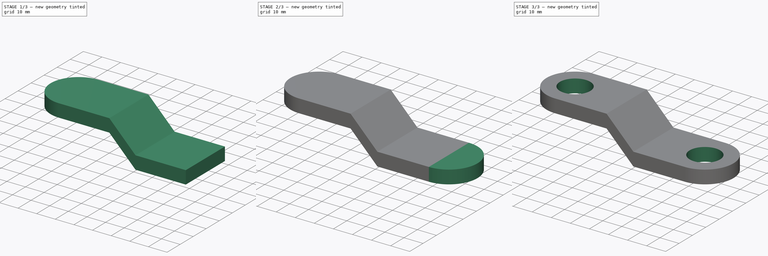
[diagram: build sequence overview — one tinted view per stage of 3, left to right]
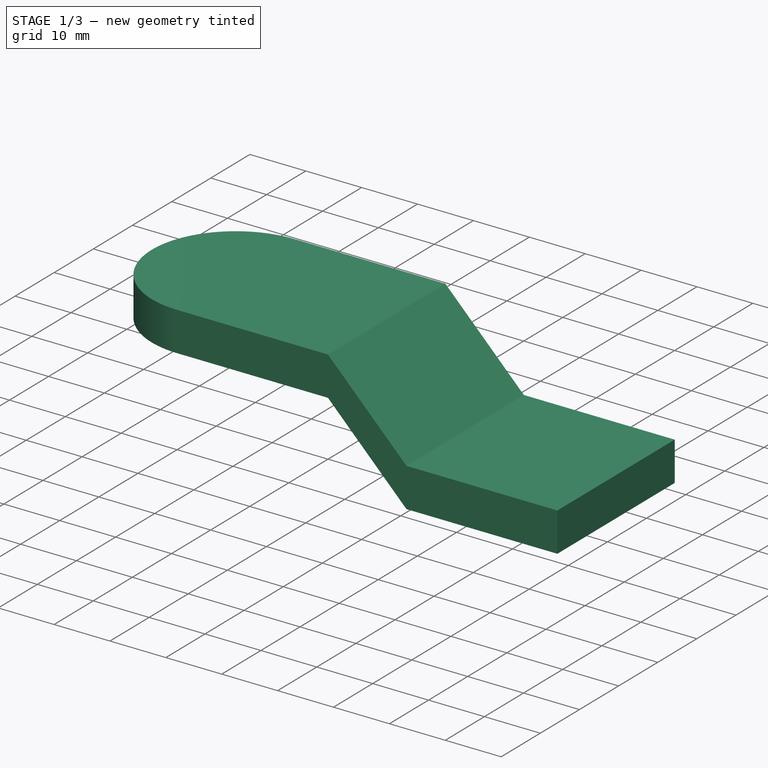
[diagram: stage 1 of 3 — iso view after this stage's code; geometry added in this stage tinted green]
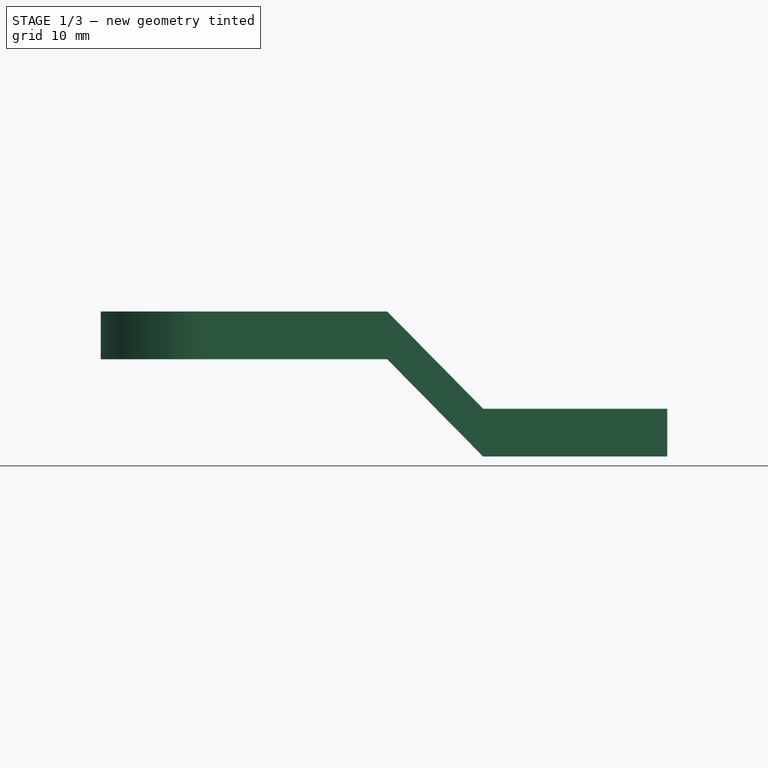
[diagram: stage 1 of 3 — front view after this stage's code; geometry added in this stage tinted green]
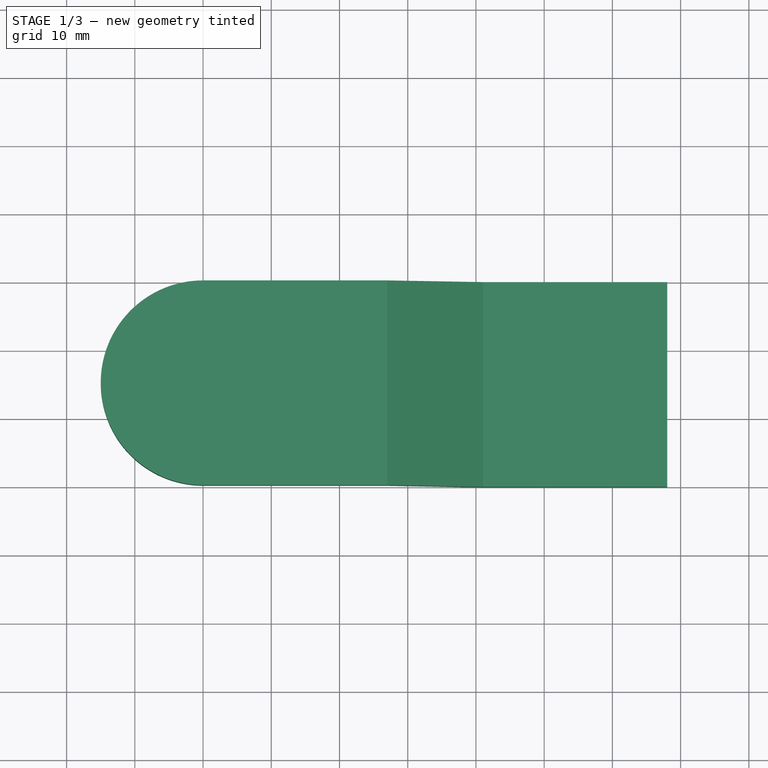
[diagram: stage 1 of 3 — top view after this stage's code; geometry added in this stage tinted green]
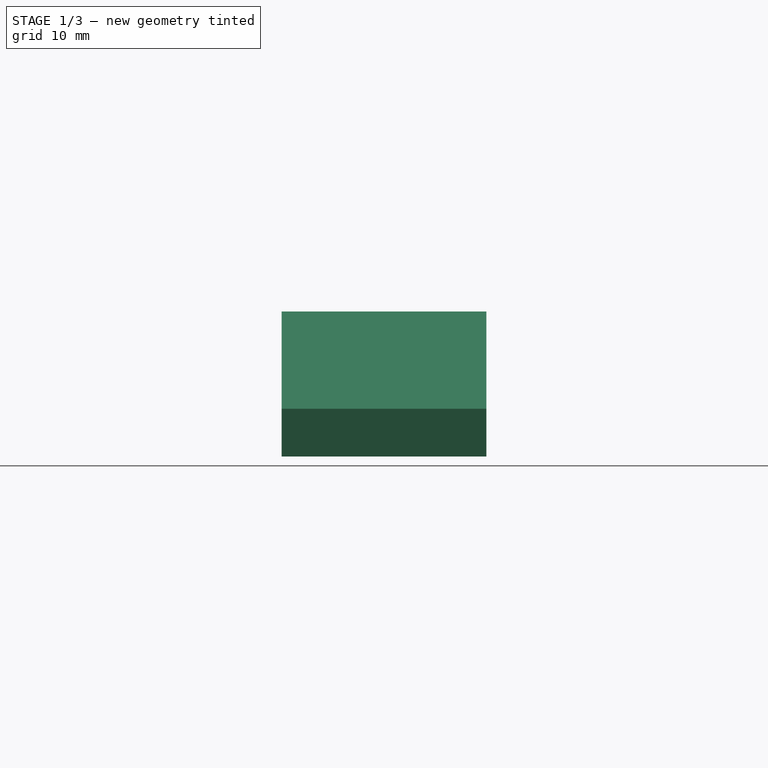
[diagram: stage 1 of 3 — right view after this stage's code; geometry added in this stage tinted green]
FCSTD DOCUMENT  (FreeCAD 0.20R29603 (Git))
Label: part03
License: All rights reserved
LicenseURL: http://en.wikipedia.org/wiki/All_rights_reserved
objects: Sketcher::SketchObject×7, PartDesign::Point×4, PartDesign::Plane×4, PartDesign::Pad×3, PartDesign::Pocket×2, PartDesign::Body×1
note: 26 computed .brp shape members not serialized (recipe doc carries the construction recipe); baked Part::Feature solids carry a one-line shape summary decoded from their .brp

FEATURE [Sketcher::SketchObject] Sketch
  FullyConstrained = true
  MapMode = 5
  Placement = pos=(0,0,0) rot=(1,0,0;1.5708rad)
  Support = -> [XZ_Plane]
  sketch-geometry (8):
    g0: LineSegment StartX=0 StartY=14.2435 StartZ=0 EndX=27 EndY=14.2435 EndZ=0
    g1: LineSegment StartX=27 StartY=14.2435 StartZ=0 EndX=41.04 EndY=0 EndZ=0
    g2: LineSegment StartX=41.04 StartY=0 StartZ=0 EndX=68.04 EndY=0 EndZ=0
    g3: LineSegment StartX=68.04 StartY=0 StartZ=0 EndX=68.04 EndY=-7 EndZ=0
    g4: LineSegment StartX=68.04 StartY=-7 StartZ=0 EndX=41.04 EndY=-7 EndZ=0
    g5: LineSegment StartX=41.04 StartY=-7 StartZ=0 EndX=27 EndY=7.24354 EndZ=0
    g6: LineSegment StartX=27 StartY=7.24354 StartZ=0 EndX=0 EndY=7.24354 EndZ=0
    g7: LineSegment StartX=0 StartY=7.24354 StartZ=0 EndX=0 EndY=14.2435 EndZ=0
  constraints (24):
    c: PointOnObject(g0,g-2)
    c: Horizontal(g0)
    c: Coincident(g0,g1)
    c: PointOnObject(g1,g-1)
    c: Coincident(g1,g2)
    c: Horizontal(g2)
    c: Coincident(g2,g3)
    c: Vertical(g3)
    c: Coincident(g3,g4)
    c: Horizontal(g4)
    c: Coincident(g4,g5)
    c: Coincident(g5,g6)
    c: Horizontal(g6)
    c: Coincident(g6,g7)
    c: Coincident(g7,g0)
    c: Vertical(g7)
    c: Equal(g7,g3)
    c: Equal(g0,g6)
    c: Equal(g4,g2)
    c: DistanceY(g7,g7) = 7
    c: DistanceX(g0,g0) = 27
    c: DistanceX(g2,g2) = 27
    c: Distance(g1) = 20
    c: DistanceX(g1,g1) = 14.04
FEATURE [PartDesign::Pad] Pad
  Direction = (0,-1,2e-16)
  Length = 30
  Length2 = 10
  Placement = pos=(0,0,0) rot=(1,0,0;1.5708rad)
  Profile = -> Sketch
  ReferenceAxis = -> Sketch [N_Axis]
  Refine = true
  Type = 0
FEATURE [Sketcher::SketchObject] Sketch001
  FullyConstrained = true
  MapMode = 5
  Support = -> [XY_Plane]
FEATURE [PartDesign::Point] DatumPoint
  AttacherType = Attacher::AttachEnginePoint
  MapMode = 37
  Placement = pos=(0,-15,14.2435) rot=(0,0,1;0rad)
  Support = -> [Pad]
FEATURE [PartDesign::Plane] DatumPlane
  Length = 60
  MapMode = 1
  Placement = pos=(0,-15,14.2435) rot=(0,0,1;0rad)
  ResizeMode = 0
  Support = -> [DatumPoint]
  Width = 60
FEATURE [Sketcher::SketchObject] Sketch002
  FullyConstrained = true
  MapMode = 5
  Placement = pos=(0,-15,14.2435) rot=(0,0,1;0rad)
  Support = -> [DatumPlane]
  sketch-geometry (2):
    g0: ArcOfCircle CenterX=0 CenterY=0 CenterZ=0 NormalX=0 NormalY=0 NormalZ=1 AngleXU=0 Radius=15 StartAngle=1.5708 EndAngle=4.71239
    g1: LineSegment StartX=1.741e-13 StartY=15 StartZ=0 EndX=-4.158e-13 EndY=-15 EndZ=0
  constraints (6):
    c: Coincident(g0,g-1)
    c: PointOnObject(g0,g-2)
    c: PointOnObject(g0,g-2)
    c: Radius(g0) = 15
    c: Coincident(g1,g0)
    c: Coincident(g1,g0)
FEATURE [PartDesign::Pad] Pad001
  BaseFeature = -> Pad
  Direction = (0,0,1)
  Length = 7
  Length2 = 10
  Placement = pos=(0,0,0) rot=(1,0,0;1.5708rad)
  Profile = -> Sketch002
  ReferenceAxis = -> Sketch002 [N_Axis]
  Refine = true
  Reversed = true
  Type = 0
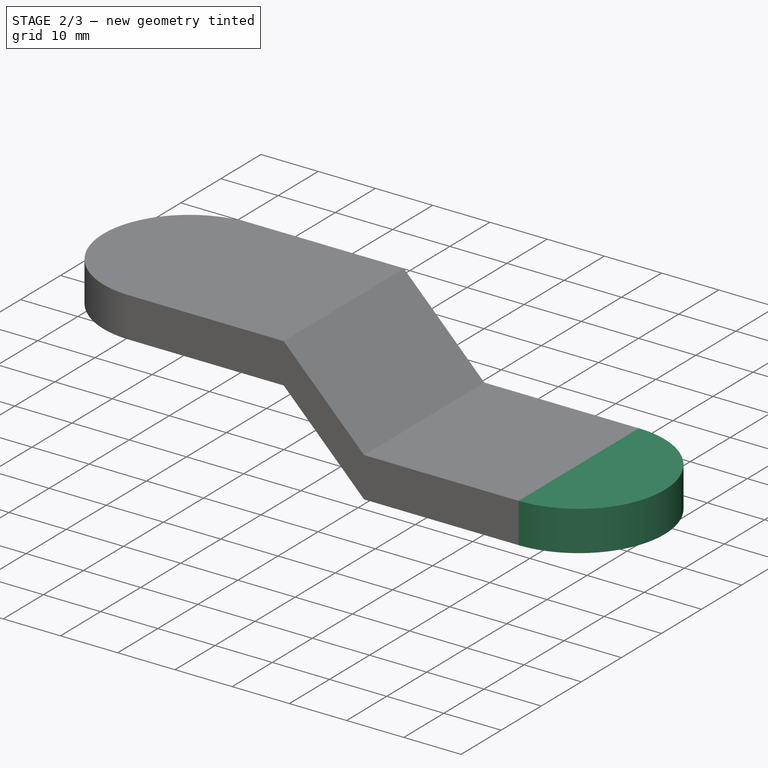
[diagram: stage 2 of 3 — iso view after this stage's code; geometry added in this stage tinted green]
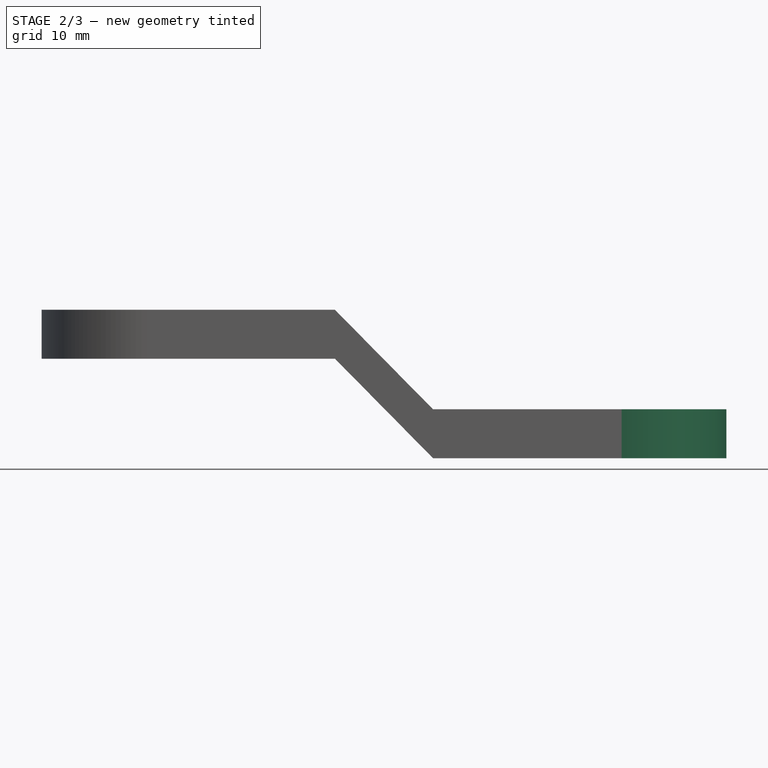
[diagram: stage 2 of 3 — front view after this stage's code; geometry added in this stage tinted green]
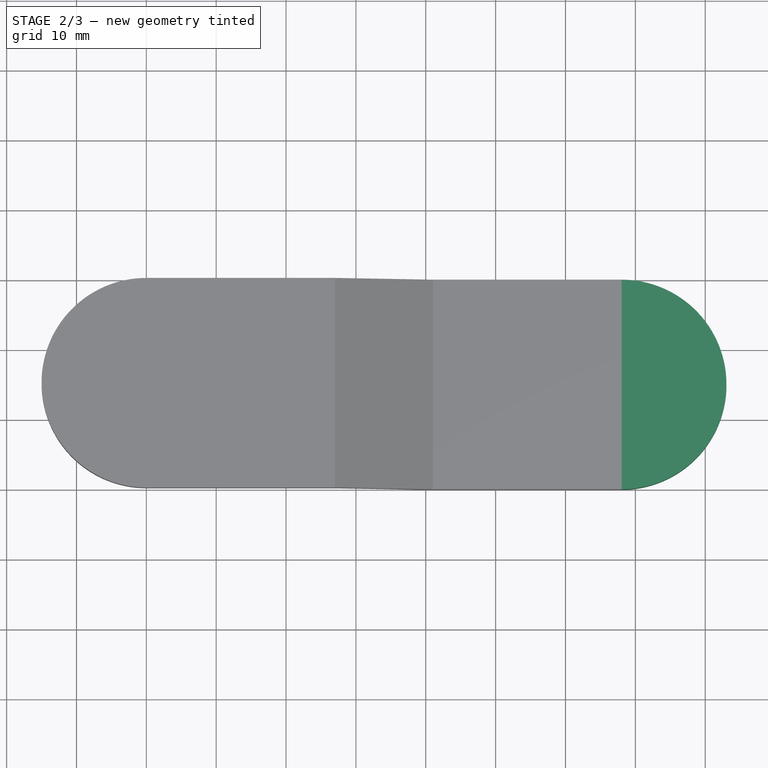
[diagram: stage 2 of 3 — top view after this stage's code; geometry added in this stage tinted green]
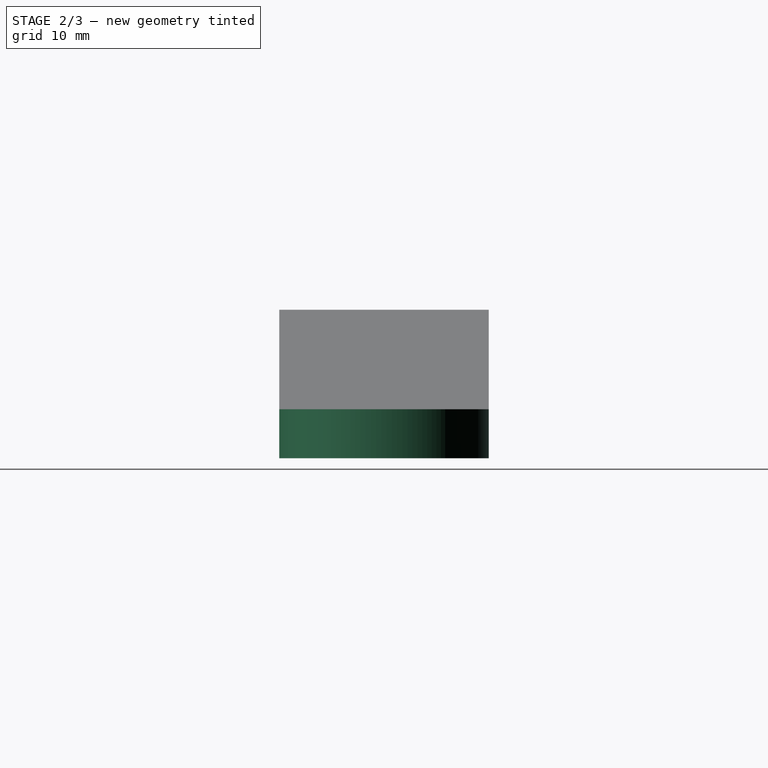
[diagram: stage 2 of 3 — right view after this stage's code; geometry added in this stage tinted green]
FEATURE [PartDesign::Point] DatumPoint001
  AttacherType = Attacher::AttachEnginePoint
  MapMode = 37
  Placement = pos=(68.04,-15,-7) rot=(0,0,1;0rad)
  Support = -> [Pad001]
FEATURE [PartDesign::Plane] DatumPlane001
  Length = 106.681
  MapMode = 1
  Placement = pos=(68.04,-15,-7) rot=(0,0,1;0rad)
  ResizeMode = 0
  Support = -> [DatumPoint001]
  Width = 63.6411
FEATURE [Sketcher::SketchObject] Sketch003
  ExternalGeometry = -> [Pad001]
  FullyConstrained = false
  MapMode = 5
  Placement = pos=(68.04,-15,-7) rot=(0,0,1;0rad)
  Support = -> [DatumPlane001]
  sketch-geometry (2):
    g0: ArcOfCircle CenterX=-3.12741e-05 CenterY=-3.26086e-11 CenterZ=0 NormalX=0 NormalY=0 NormalZ=1 AngleXU=0 Radius=15 StartAngle=4.71239 EndAngle=7.85398
    g1: LineSegment StartX=2e-16 StartY=15 StartZ=0 EndX=2e-16 EndY=-15 EndZ=0
  constraints (5):
    c: Radius(g0) = 15
    c: Coincident(g0,g-4)
    c: Coincident(g1,g0)
    c: Coincident(g1,g0)
    c: Vertical(g1)
FEATURE [PartDesign::Pad] Pad002
  BaseFeature = -> Pad001
  Direction = (0,0,1)
  Length = 7
  Length2 = 10
  Placement = pos=(0,0,0) rot=(1,0,0;1.5708rad)
  Profile = -> Sketch003
  ReferenceAxis = -> Sketch003 [N_Axis]
  Refine = true
  Type = 0
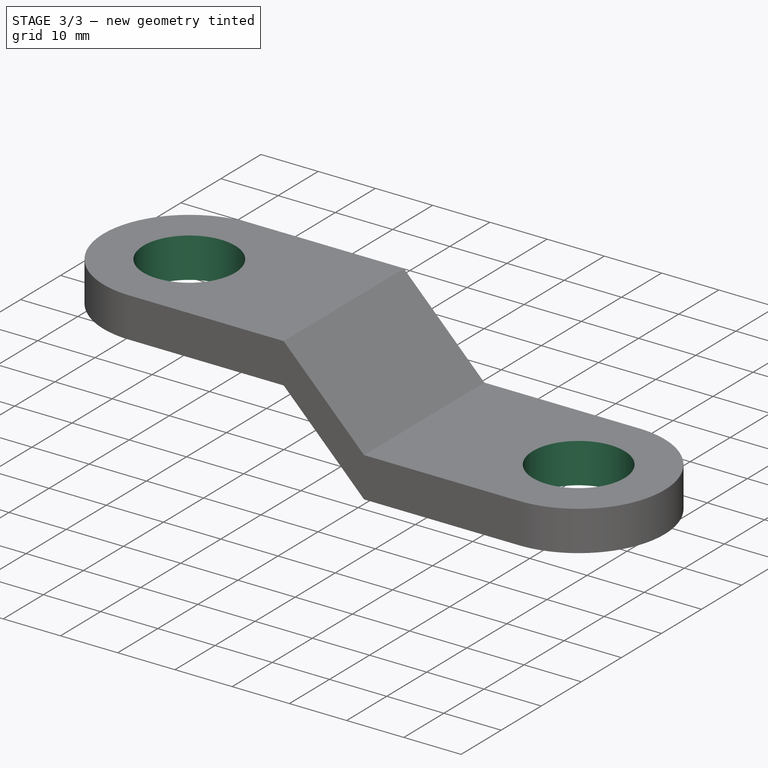
[diagram: stage 3 of 3 — iso view after this stage's code; geometry added in this stage tinted green]
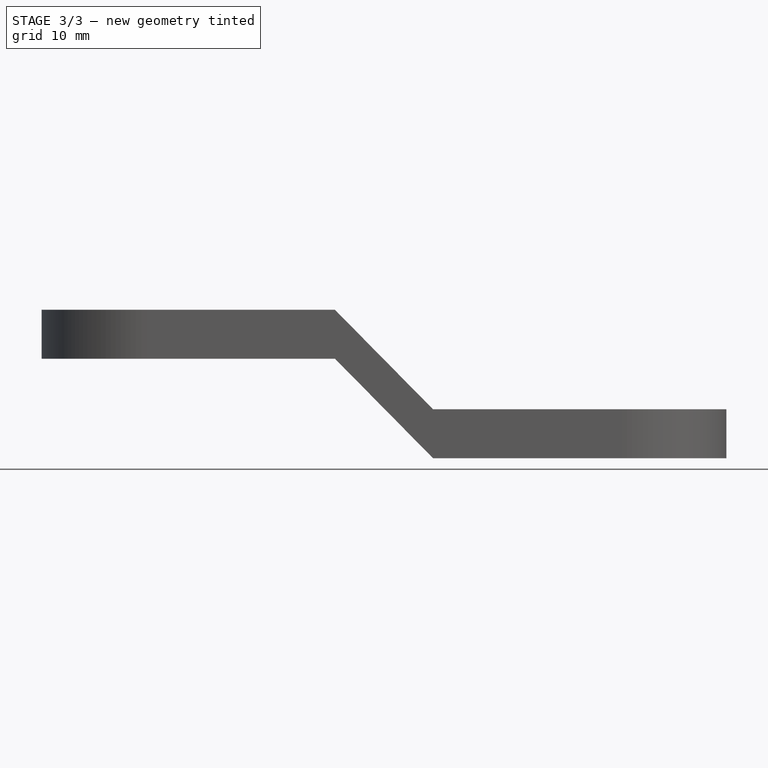
[diagram: stage 3 of 3 — front view after this stage's code; geometry added in this stage tinted green]
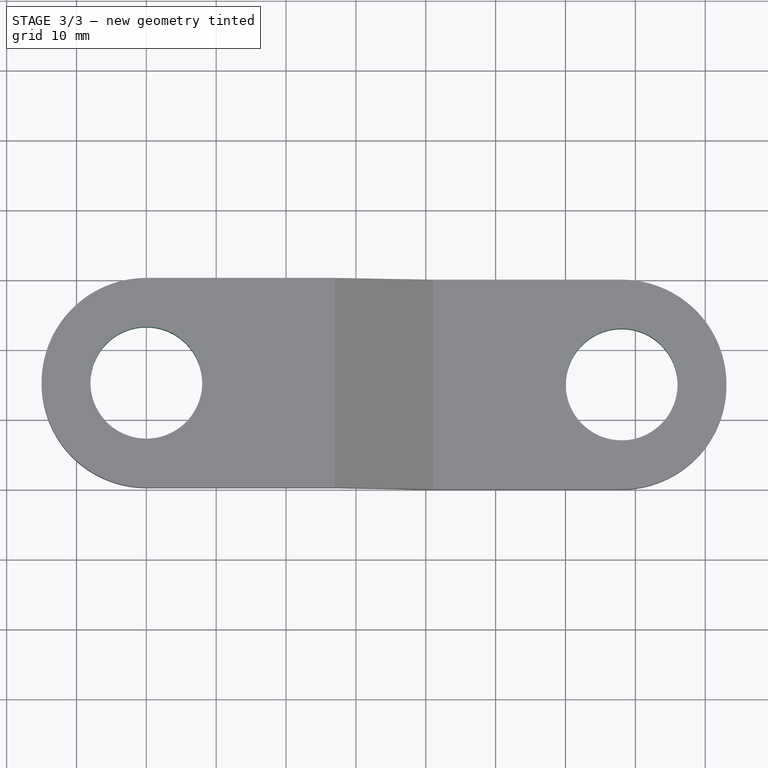
[diagram: stage 3 of 3 — top view after this stage's code; geometry added in this stage tinted green]
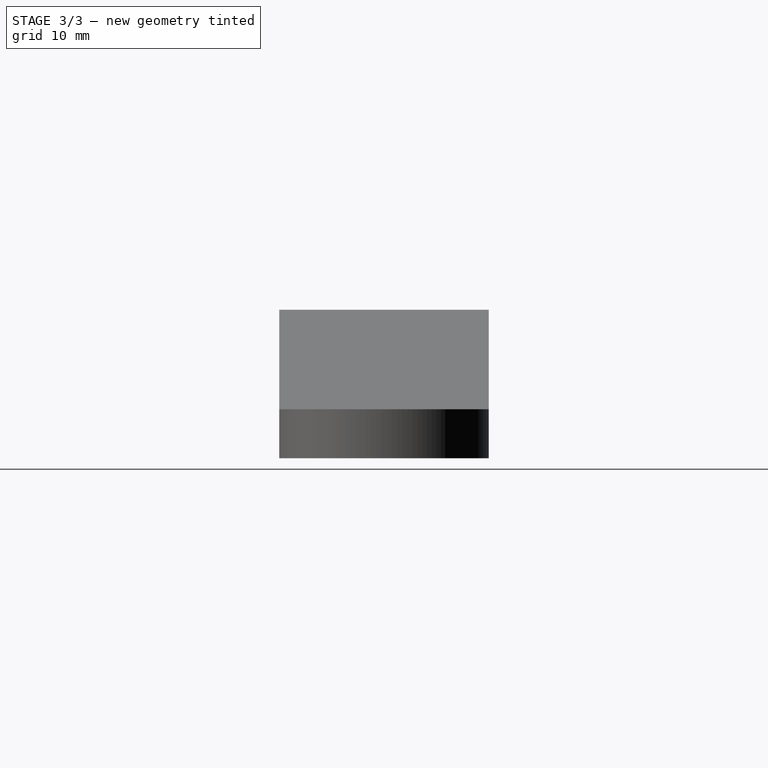
[diagram: stage 3 of 3 — right view after this stage's code; geometry added in this stage tinted green]
FEATURE [Sketcher::SketchObject] Sketch004
  FullyConstrained = true
  MapMode = 5
  Placement = pos=(68.04,-15,-7) rot=(0.707107,-0.707107,0;3.14159rad)
  sketch-geometry (1):
    g0: Circle CenterX=0 CenterY=0 CenterZ=0 NormalX=0 NormalY=0 NormalZ=1 AngleXU=0 Radius=8
  constraints (2):
    c: Coincident(g0,g-1)
    c: Diameter(g0) = 16
FEATURE [PartDesign::Pocket] Pocket
  BaseFeature = -> Pad002
  Direction = (0,2e-16,1)
  Length = 5
  Length2 = 5
  Placement = pos=(0,0,0) rot=(1,0,0;1.5708rad)
  Profile = -> Sketch004
  ReferenceAxis = -> Sketch004 [N_Axis]
  Refine = true
  Type = 1
FEATURE [PartDesign::Point] DatumPoint002
  AttacherType = Attacher::AttachEnginePoint
  MapMode = 37
  Placement = pos=(7.465,-15,14.2435) rot=(0,0,1;0rad)
  Support = -> [Pocket]
FEATURE [PartDesign::Plane] DatumPlane002
  Length = 60
  MapMode = 1
  Placement = pos=(7.465,-15,14.2435) rot=(0,0,1;0rad)
  ResizeMode = 0
  Support = -> [DatumPoint002]
  Width = 60
FEATURE [Sketcher::SketchObject] Sketch005
  FullyConstrained = true
  MapMode = 5
  Placement = pos=(7.465,-15,14.2435) rot=(0,0,1;0rad)
  Support = -> [DatumPlane002]
FEATURE [PartDesign::Point] DatumPoint003
  AttacherType = Attacher::AttachEnginePoint
  MapMode = 36
  Placement = pos=(0,-15,14.2435) rot=(0.57735,0.57735,0.57735;2.0944rad)
  Support = -> [Pocket]
FEATURE [PartDesign::Plane] DatumPlane003
  Length = 60
  MapMode = 1
  Placement = pos=(0,-15,14.2435) rot=(0,0,1;0rad)
  ResizeMode = 0
  Support = -> [DatumPoint003]
  Width = 60
FEATURE [Sketcher::SketchObject] Sketch006
  FullyConstrained = true
  MapMode = 5
  Placement = pos=(0,-15,14.2435) rot=(0,0,1;0rad)
  Support = -> [DatumPlane003]
  sketch-geometry (1):
    g0: Circle CenterX=0 CenterY=0 CenterZ=0 NormalX=0 NormalY=0 NormalZ=1 AngleXU=0 Radius=8
  constraints (2):
    c: Coincident(g0,g-1)
    c: Diameter(g0) = 16
FEATURE [PartDesign::Pocket] Pocket001
  BaseFeature = -> Pocket
  Direction = (0,0,-1)
  Length = 5
  Length2 = 5
  Placement = pos=(0,0,0) rot=(1,0,0;1.5708rad)
  Profile = -> Sketch006
  ReferenceAxis = -> Sketch006 [N_Axis]
  Refine = true
  Type = 1
FEATURE [PartDesign::Body] Body
  Group = -> [Sketch,Pad,Sketch001,DatumPoint,DatumPlane,Sketch002,Pad001,DatumPoint001,DatumPlane001,Sketch003,Pad002,Sketch004,Pocket,DatumPoint002,DatumPlane002,Sketch005,DatumPoint003,DatumPlane003,Sketch006,Pocket001]
  Origin = -> Origin
  Tip = -> Pocket001
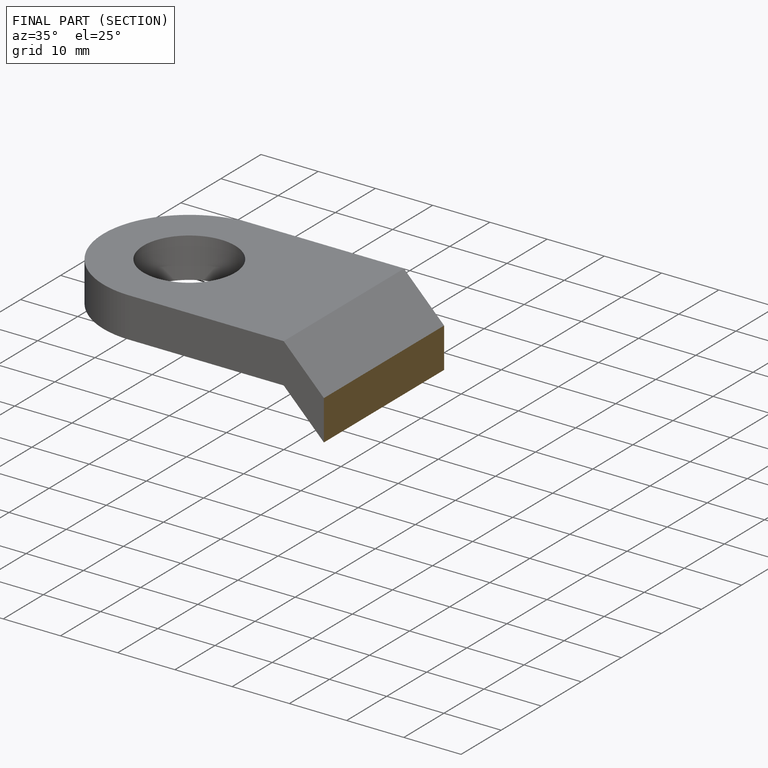
[diagram: finished part — half-section view (interior)]
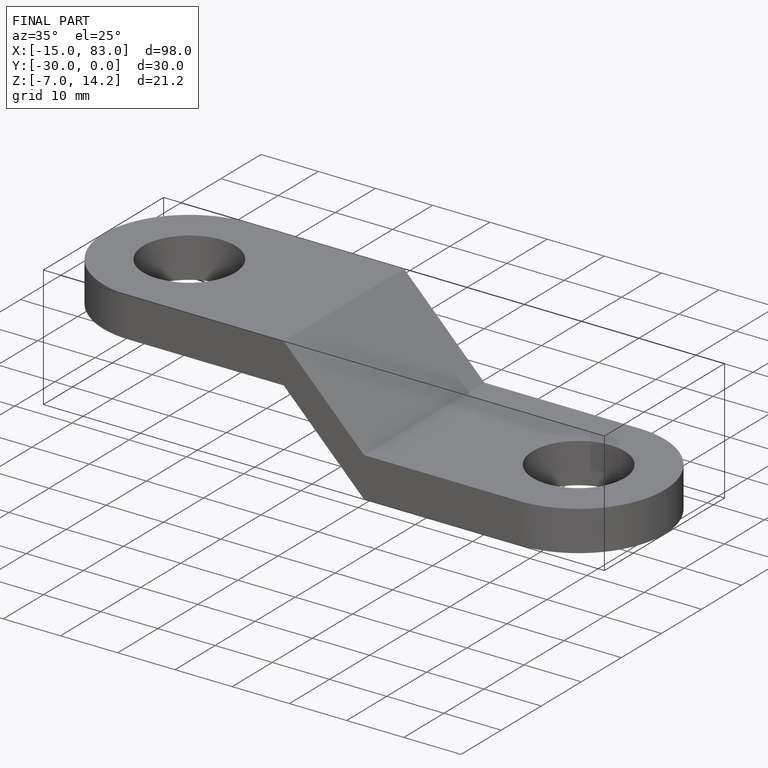
[diagram: finished part — iso view with bounding-box wireframe]
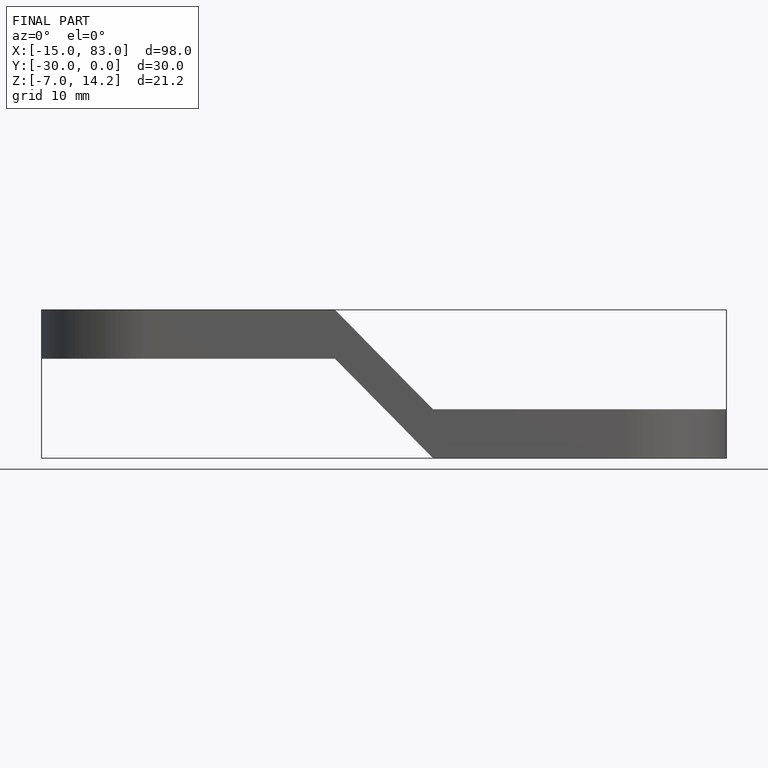
[diagram: finished part — front view with bounding-box wireframe]
